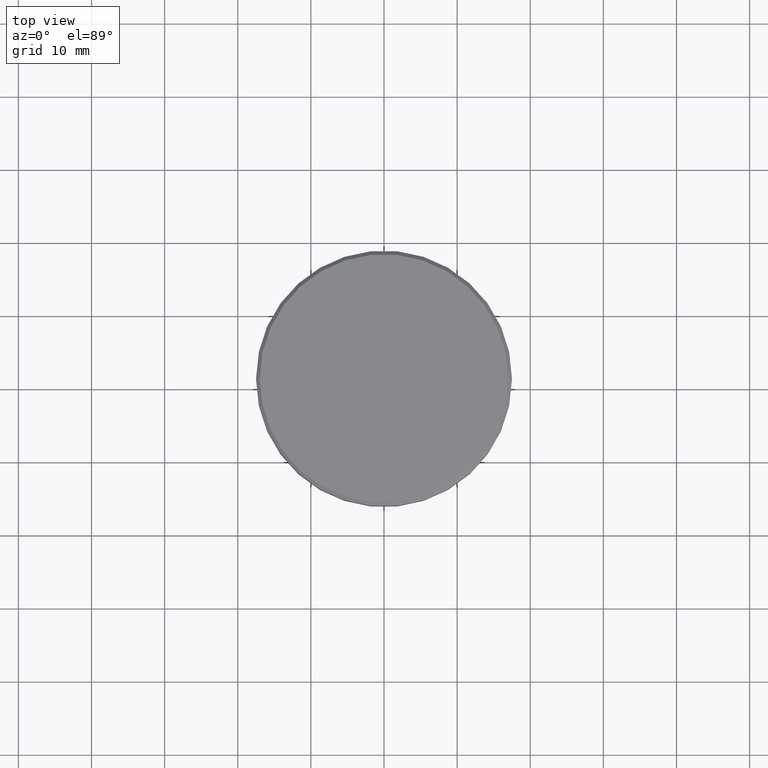
[diagram: clean part render]
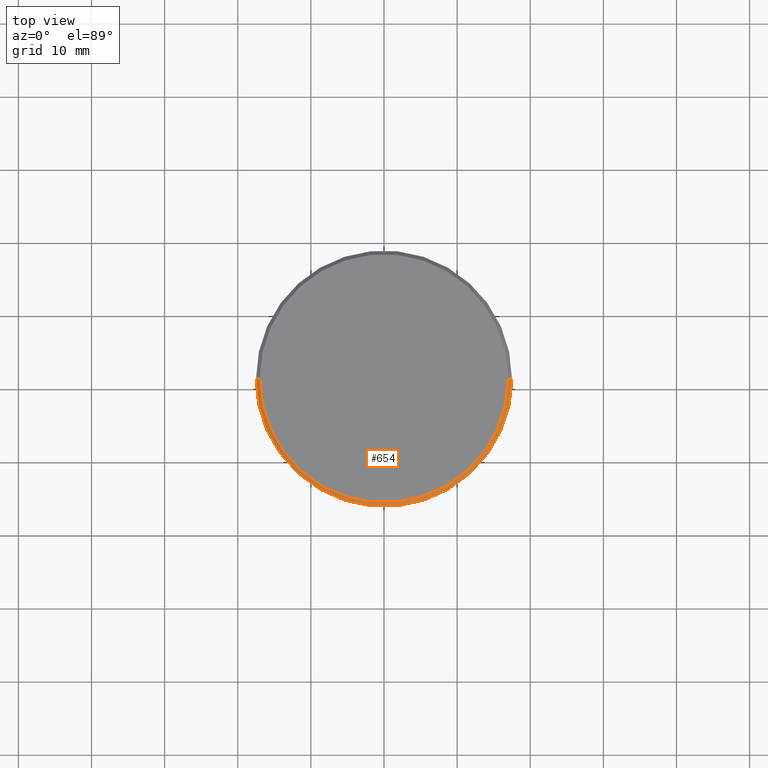
[diagram: same view with one face highlighted and labeled with its STEP entity id]
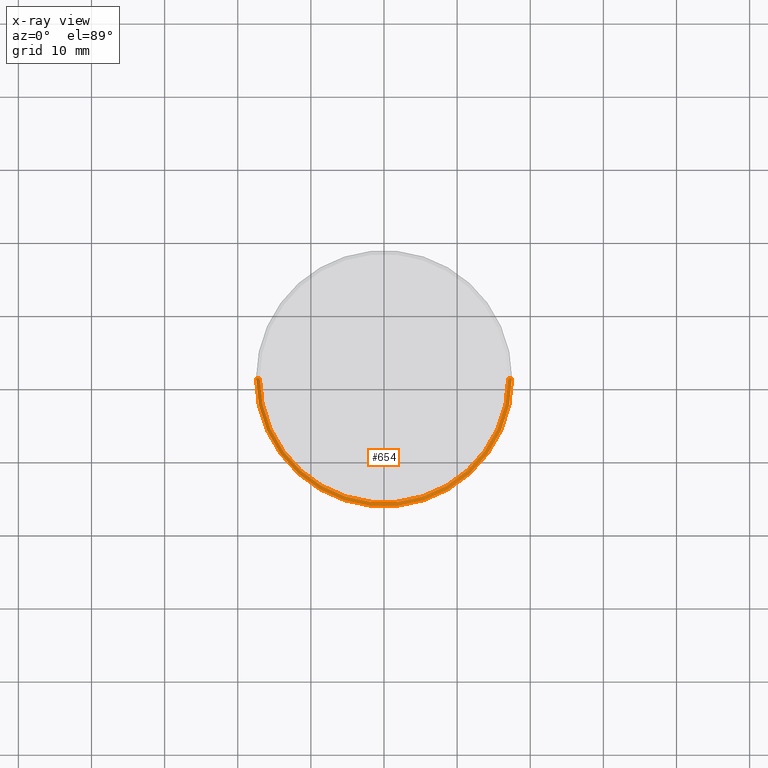
[diagram: x-ray of the same camera — body ghosted, the highlighted face saturated]
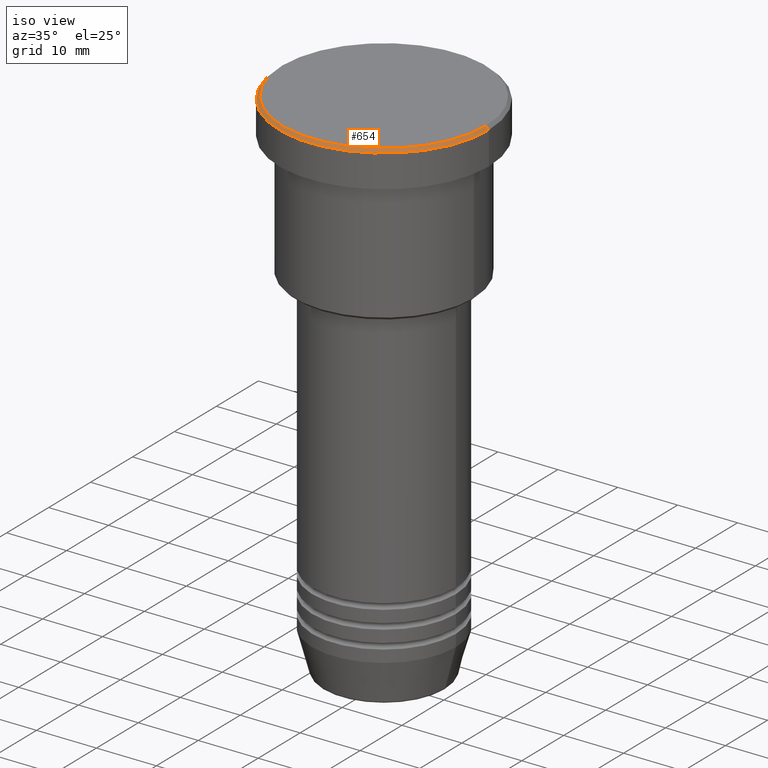
[diagram: same view with one face highlighted and labeled with its STEP entity id]
A machine part, top view. The second image highlights one B-rep face of the part: STEP entity #654.
The next image is the same camera in x-ray: the body ghosted, the highlighted face saturated — about 0% of this face is hidden behind the body in this view.
A second angle (iso view) of the same face is appended — the face is thin or edge-on in the first view.
In plain terms, the highlighted conical surface has half-angle 45 deg.
Its self-contained STEP definition (entity closure, byte-faithful):
#34 = DIRECTION ( 'NONE',  ( 1.000000000000000000, 0.000000000000000000, 0.000000000000000000 ) ) ;
#73 = EDGE_CURVE ( 'NONE', #236, #275, #540, .T. ) ;
#80 = AXIS2_PLACEMENT_3D ( 'NONE', #983, #258, #882 ) ;
#203 = AXIS2_PLACEMENT_3D ( 'NONE', #1102, #1175, #647 ) ;
#213 = LINE ( 'NONE', #846, #935 ) ;
#236 = VERTEX_POINT ( 'NONE', #356 ) ;
#258 = DIRECTION ( 'NONE',  ( 0.000000000000000000, 0.000000000000000000, -1.000000000000000000 ) ) ;
#275 = VERTEX_POINT ( 'NONE', #1065 ) ;
#292 = CARTESIAN_POINT ( 'NONE',  ( -16.99999999999998579, 0.000000000000000000, 0.000000000000000000 ) ) ;
#328 = CONICAL_SURFACE ( 'NONE', #80, 16.99999999999998579, 0.7853981633974482790 ) ;
#333 = CARTESIAN_POINT ( 'NONE',  ( -17.50000000000000000, 2.143131898507868248E-15, -0.5000000000000143219 ) ) ;
#353 = FACE_OUTER_BOUND ( 'NONE', #925, .T. ) ;
#356 = CARTESIAN_POINT ( 'NONE',  ( -16.99999999999998579, 0.000000000000000000, 0.000000000000000000 ) ) ;
#373 = CIRCLE ( 'NONE', #203, 17.50000000000000000 ) ;
#404 = EDGE_CURVE ( 'NONE', #236, #674, #650, .T. ) ;
#493 = ORIENTED_EDGE ( 'NONE', *, *, #860, .F. ) ;
#540 = CIRCLE ( 'NONE', #725, 16.99999999999998579 ) ;
#543 = EDGE_CURVE ( 'NONE', #275, #1160, #213, .T. ) ;
#582 = ORIENTED_EDGE ( 'NONE', *, *, #73, .F. ) ;
#603 = CARTESIAN_POINT ( 'NONE',  ( 17.50000000000000000, 0.000000000000000000, -0.5000000000000143219 ) ) ;
#647 = DIRECTION ( 'NONE',  ( 1.000000000000000000, 0.000000000000000000, 0.000000000000000000 ) ) ;
#650 = LINE ( 'NONE', #292, #916 ) ;
#654 = ADVANCED_FACE ( 'NONE', ( #353 ), #328, .T. ) ;
#674 = VERTEX_POINT ( 'NONE', #333 ) ;
#697 = ORIENTED_EDGE ( 'NONE', *, *, #404, .T. ) ;
#725 = AXIS2_PLACEMENT_3D ( 'NONE', #772, #942, #34 ) ;
#764 = DIRECTION ( 'NONE',  ( 0.7071067811865474617, 8.659560562354932858E-17, -0.7071067811865474617 ) ) ;
#772 = CARTESIAN_POINT ( 'NONE',  ( 0.000000000000000000, 0.000000000000000000, 0.000000000000000000 ) ) ;
#846 = CARTESIAN_POINT ( 'NONE',  ( 16.99999999999998579, 2.081899558550499096E-15, 0.000000000000000000 ) ) ;
#860 = EDGE_CURVE ( 'NONE', #1160, #674, #373, .T. ) ;
#882 = DIRECTION ( 'NONE',  ( -1.000000000000000000, 0.000000000000000000, 0.000000000000000000 ) ) ;
#916 = VECTOR ( 'NONE', #1080, 1000.000000000000114 ) ;
#925 = EDGE_LOOP ( 'NONE', ( #958, #582, #697, #493 ) ) ;
#935 = VECTOR ( 'NONE', #764, 1000.000000000000114 ) ;
#942 = DIRECTION ( 'NONE',  ( -0.000000000000000000, -0.000000000000000000, 1.000000000000000000 ) ) ;
#958 = ORIENTED_EDGE ( 'NONE', *, *, #543, .F. ) ;
#983 = CARTESIAN_POINT ( 'NONE',  ( 0.000000000000000000, 0.000000000000000000, 0.000000000000000000 ) ) ;
#1065 = CARTESIAN_POINT ( 'NONE',  ( 16.99999999999998579, 2.112515728529183278E-15, 0.000000000000000000 ) ) ;
#1080 = DIRECTION ( 'NONE',  ( -0.7071067811865474617, 0.000000000000000000, -0.7071067811865474617 ) ) ;
#1102 = CARTESIAN_POINT ( 'NONE',  ( 0.000000000000000000, 0.000000000000000000, -0.5000000000000143219 ) ) ;
#1160 = VERTEX_POINT ( 'NONE', #603 ) ;
#1175 = DIRECTION ( 'NONE',  ( 0.000000000000000000, 0.000000000000000000, -1.000000000000000000 ) ) ;